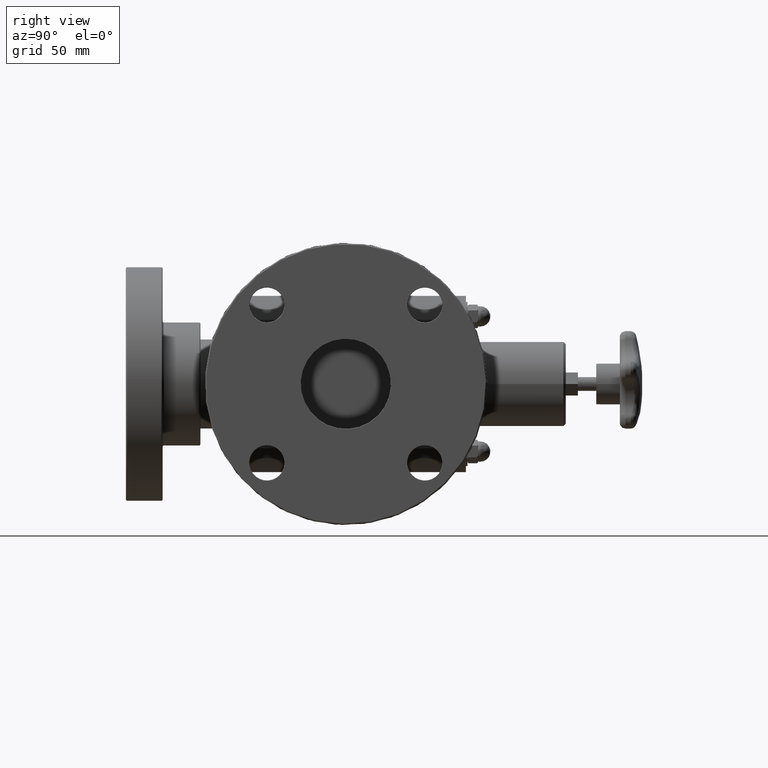
[diagram: clean part render]
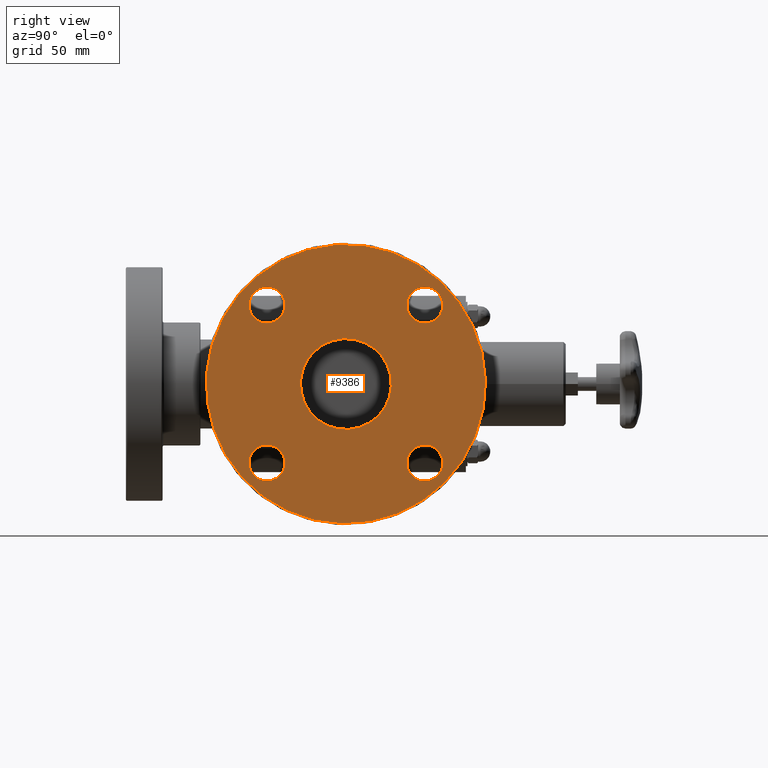
[diagram: same view with one face highlighted and labeled with its STEP entity id]
A machine part, right view. The second image highlights one B-rep face of the part: STEP entity #9386.
In plain terms, the highlighted planar face has unit normal (1, 0, 0).
Its self-contained STEP definition (entity closure, byte-faithful):
#9308=CARTESIAN_POINT('',(4.624999999999999,4.298107140124049,-2.100107140124044));
#9309=VERTEX_POINT('',#9308);
#9310=CARTESIAN_POINT('',(4.625000000000000,2.198000000000001,1.133226E-015));
#9311=DIRECTION('',(-1.0,-9.300431E-017,9.300431E-017));
#9312=DIRECTION('',(1.315280E-016,-0.707106781186548,0.707106781186547));
#9313=AXIS2_PLACEMENT_3D('',#9310,#9311,#9312);
#9314=CIRCLE('',#9313,2.970000000000000);
#9315=EDGE_CURVE('',#9309,#9309,#9314,.T.);
#9323=CARTESIAN_POINT('',(4.625000000000000,3.596833989882290,-1.398833989882286));
#9324=DIRECTION('',(1.0,0.0,0.0));
#9325=DIRECTION('',(0.0,-0.707106781186547,-0.707106781186548));
#9326=AXIS2_PLACEMENT_3D('',#9323,#9324,#9325);
#9327=PLANE('',#9326);
#9328=ORIENTED_EDGE('',*,*,#9315,.F.);
#9329=EDGE_LOOP('',(#9328));
#9330=FACE_OUTER_BOUND('',#9329,.T.);
#9331=CARTESIAN_POINT('',(4.625000000000001,0.248153050878095,1.408910261514196));
#9332=VERTEX_POINT('',#9331);
#9333=CARTESIAN_POINT('',(4.625000000000000,0.518621394681949,1.679378605318050));
#9334=DIRECTION('',(1.0,2.154690E-016,2.154690E-016));
#9335=DIRECTION('',(-3.047192E-016,0.707106781186547,0.707106781186548));
#9336=AXIS2_PLACEMENT_3D('',#9333,#9334,#9335);
#9337=CIRCLE('',#9336,0.382500000000000);
#9338=EDGE_CURVE('',#9332,#9332,#9337,.T.);
#9339=ORIENTED_EDGE('',*,*,#9338,.F.);
#9340=EDGE_LOOP('',(#9339));
#9341=FACE_BOUND('',#9340,.T.);
#9342=CARTESIAN_POINT('',(4.624999999999999,3.606910261514195,1.949846949121907));
#9343=VERTEX_POINT('',#9342);
#9344=CARTESIAN_POINT('',(4.624999999999999,3.877378605318050,1.679378605318053));
#9345=DIRECTION('',(1.0,9.300431E-017,-9.300431E-017));
#9346=DIRECTION('',(-1.315280E-016,0.707106781186548,-0.707106781186547));
#9347=AXIS2_PLACEMENT_3D('',#9344,#9345,#9346);
#9348=CIRCLE('',#9347,0.382500000000000);
#9349=EDGE_CURVE('',#9343,#9343,#9348,.T.);
#9350=ORIENTED_EDGE('',*,*,#9349,.F.);
#9351=EDGE_LOOP('',(#9350));
#9352=FACE_BOUND('',#9351,.T.);
#9353=CARTESIAN_POINT('',(4.624999999999999,4.147846949121908,-1.408910261514194));
#9354=VERTEX_POINT('',#9353);
#9355=CARTESIAN_POINT('',(4.625000000000000,3.877378605318053,-1.679378605318048));
#9356=DIRECTION('',(1.0,2.154690E-016,2.154690E-016));
#9357=DIRECTION('',(3.047192E-016,-0.707106781186547,-0.707106781186548));
#9358=AXIS2_PLACEMENT_3D('',#9355,#9356,#9357);
#9359=CIRCLE('',#9358,0.382500000000000);
#9360=EDGE_CURVE('',#9354,#9354,#9359,.T.);
#9361=ORIENTED_EDGE('',*,*,#9360,.F.);
#9362=EDGE_LOOP('',(#9361));
#9363=FACE_BOUND('',#9362,.T.);
#9364=CARTESIAN_POINT('',(4.625000000000000,2.881418704016800,-0.683418704016796));
#9365=VERTEX_POINT('',#9364);
#9366=CARTESIAN_POINT('',(4.625000000000000,2.198000000000001,1.133226E-015));
#9367=DIRECTION('',(1.000000000000000,9.300431E-017,-9.300431E-017));
#9368=DIRECTION('',(1.315280E-016,-0.707106781186548,0.707106781186547));
#9369=AXIS2_PLACEMENT_3D('',#9366,#9367,#9368);
#9370=CIRCLE('',#9369,0.966500000000000);
#9371=EDGE_CURVE('',#9365,#9365,#9370,.T.);
#9372=ORIENTED_EDGE('',*,*,#9371,.F.);
#9373=EDGE_LOOP('',(#9372));
#9374=FACE_BOUND('',#9373,.T.);
#9375=CARTESIAN_POINT('',(4.625000000000001,0.789089738485806,-1.949846949121905));
#9376=VERTEX_POINT('',#9375);
#9377=CARTESIAN_POINT('',(4.625000000000001,0.518621394681952,-1.679378605318051));
#9378=DIRECTION('',(1.0,9.300431E-017,-9.300431E-017));
#9379=DIRECTION('',(1.315280E-016,-0.707106781186548,0.707106781186547));
#9380=AXIS2_PLACEMENT_3D('',#9377,#9378,#9379);
#9381=CIRCLE('',#9380,0.382500000000000);
#9382=EDGE_CURVE('',#9376,#9376,#9381,.T.);
#9383=ORIENTED_EDGE('',*,*,#9382,.F.);
#9384=EDGE_LOOP('',(#9383));
#9385=FACE_BOUND('',#9384,.T.);
#9386=ADVANCED_FACE('',(#9330,#9341,#9352,#9363,#9374,#9385),#9327,.T.);